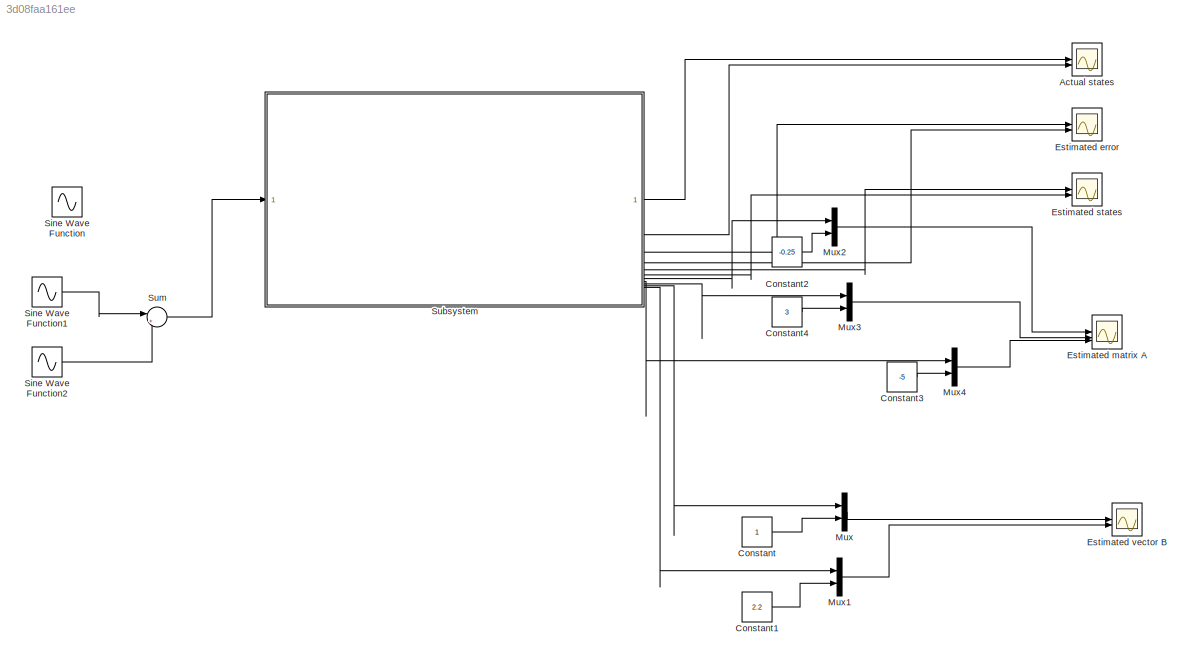
MODEL slx_3d08faa161ee
KIND model
CONFIG AbsTol = auto
CONFIG EnableMultiTasking = off
CONFIG FixedStep = auto
CONFIG MaxStep = auto
CONFIG MinStep = auto
CONFIG RelTol = 1e-3
CONFIG SampleTimeConstraint = Unconstrained
CONFIG SolverName = VariableStepAuto
CONFIG StartTime = 0.0
CONFIG StopTime = 100.0
BLOCK [Scope] Actual states
  Floating = off
  NumInputPorts = 2
  ScopeSpecificationString = Simulink.scopes.TimeScopeBlockCfg('CurrentConfiguration', extmgr.ConfigurationSet(extmgr.Configuration('Core','General UI',true,'FigureColor',[0 0 0]),extmgr.Configuration('Core','Source UI',true),extmgr.Configuration('Sources','WiredSimulink',true),extmgr.Configuration('Visuals','Time Domain',true,'SerializedDisplays',{struct('MinYLimReal','-43.25924','MaxYLimReal','42.99645','YLabelReal','','Min...<+2177ch>
BLOCK [Constant] Constant
BLOCK [Constant] Constant1
  Value = 2.2
BLOCK [Constant] Constant2
  Value = -0.25
BLOCK [Constant] Constant3
  Value = -5
BLOCK [Constant] Constant4
  Value = 3
BLOCK [Scope] Estimated error
  Floating = off
  NumInputPorts = 2
  ScopeSpecificationString = Simulink.scopes.TimeScopeBlockCfg('CurrentConfiguration', extmgr.ConfigurationSet(extmgr.Configuration('Core','General UI',true),extmgr.Configuration('Core','Source UI',true),extmgr.Configuration('Sources','WiredSimulink',true,'DataLoggingVariableName','ScopeData3'),extmgr.Configuration('Visuals','Time Domain',true,'SerializedDisplays',{struct('MinYLimReal','-1.77203','MaxYLimReal','1.6765','YLabe...<+2262ch>
BLOCK [Scope] Estimated matrix A
  Floating = off
  NumInputPorts = 3
  ScopeSpecificationString = Simulink.scopes.TimeScopeBlockCfg('CurrentConfiguration', extmgr.ConfigurationSet(extmgr.Configuration('Core','General UI',true),extmgr.Configuration('Core','Source UI',true),extmgr.Configuration('Sources','WiredSimulink',true,'DataLoggingVariableName','ScopeData6'),extmgr.Configuration('Visuals','Time Domain',true,'SerializedDisplays',{struct('MinYLimReal','-3.00702','MaxYLimReal','1.76682','YLab...<+3279ch>
BLOCK [Scope] Estimated states
  Floating = off
  NumInputPorts = 2
  ScopeSpecificationString = Simulink.scopes.TimeScopeBlockCfg('CurrentConfiguration', extmgr.ConfigurationSet(extmgr.Configuration('Core','General UI',true),extmgr.Configuration('Core','Source UI',true),extmgr.Configuration('Sources','WiredSimulink',true,'DataLoggingVariableName','ScopeData5'),extmgr.Configuration('Visuals','Time Domain',true,'SerializedDisplays',{struct('MinYLimReal','-43.12696','MaxYLimReal','43.08718','YL...<+2233ch>
BLOCK [Scope] Estimated vector B
  Floating = off
  NumInputPorts = 2
  ScopeSpecificationString = Simulink.scopes.TimeScopeBlockCfg('CurrentConfiguration', extmgr.ConfigurationSet(extmgr.Configuration('Core','General UI',true),extmgr.Configuration('Core','Source UI',true),extmgr.Configuration('Sources','WiredSimulink',true,'DataLoggingVariableName','ScopeData7'),extmgr.Configuration('Visuals','Time Domain',true,'SerializedDisplays',{struct('MinYLimReal','-1.11238','MaxYLimReal','3.04213','YLab...<+2392ch>
BLOCK [Mux] Mux
  DisplayOption = bar
  Inputs = 2
BLOCK [Mux] Mux1
  DisplayOption = bar
  Inputs = 2
BLOCK [Mux] Mux2
  DisplayOption = bar
  Inputs = 2
BLOCK [Mux] Mux3
  DisplayOption = bar
  Inputs = 2
BLOCK [Mux] Mux4
  DisplayOption = bar
  Inputs = 2
BLOCK [Sin] Sine Wave Function
  Amplitude = 10
  Frequency = 2
  SampleTime = 0
BLOCK [Sin] Sine Wave Function1
  Amplitude = 10
  Frequency = 2
  SampleTime = 0
BLOCK [Sin] Sine Wave Function2
  Amplitude = 7
  Frequency = 3.6
  Phase = pi/2
  SampleTime = 0
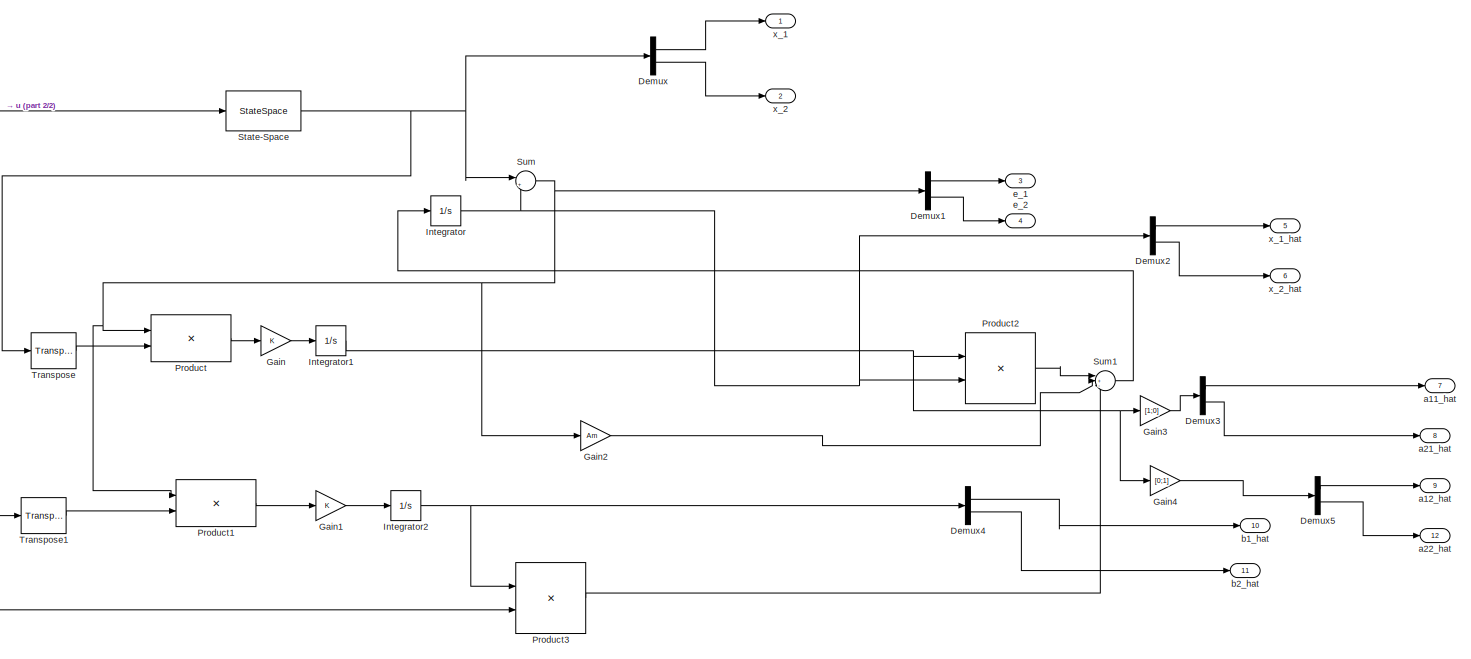
[diagram: Subsystem - part 1/2, most of the canvas]
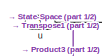
[diagram: Subsystem - part 2/2, top left region]
BLOCK [SubSystem] Subsystem
BLOCK [Demux] Subsystem/Demux
  Outputs = 2
BLOCK [Demux] Subsystem/Demux1
  Outputs = 2
BLOCK [Demux] Subsystem/Demux2
  Outputs = 2
BLOCK [Demux] Subsystem/Demux3
  Outputs = 2
BLOCK [Demux] Subsystem/Demux4
  Outputs = 2
BLOCK [Demux] Subsystem/Demux5
  Outputs = 2
BLOCK [Gain] Subsystem/Gain
BLOCK [Gain] Subsystem/Gain1
BLOCK [Gain] Subsystem/Gain2
  Gain = Am
  Multiplication = Matrix(K*u)
BLOCK [Gain] Subsystem/Gain3
  Gain = [1;0]
  Multiplication = Matrix(u*K)
BLOCK [Gain] Subsystem/Gain4
  Gain = [0;1]
  Multiplication = Matrix(u*K)
BLOCK [Integrator] Subsystem/Integrator
BLOCK [Integrator] Subsystem/Integrator1
BLOCK [Integrator] Subsystem/Integrator2
BLOCK [Product] Subsystem/Product
  Multiplication = Matrix(*)
BLOCK [Product] Subsystem/Product1
  Multiplication = Matrix(*)
BLOCK [Product] Subsystem/Product2
  Multiplication = Matrix(*)
BLOCK [Product] Subsystem/Product3
  Multiplication = Matrix(*)
BLOCK [StateSpace] Subsystem/State-Space
  A = A
  B = B
  C = [1 0;0 1]
  D = [0;0]
  InitialCondition = [0,0]
BLOCK [Sum] Subsystem/Sum
  Inputs = |+-
BLOCK [Sum] Subsystem/Sum1
  Inputs = |+-+
BLOCK [Reference] Subsystem/Transpose  REF=matrix_library/Transpose
  LibrarySourceBlock = simulink/Matrix\nOperations/Transpose
  SourceBlock = matrix_library/Transpose
  SourceType = Transpose
BLOCK [Reference] Subsystem/Transpose1  REF=matrix_library/Transpose
  LibrarySourceBlock = simulink/Matrix\nOperations/Transpose
  SourceBlock = matrix_library/Transpose
  SourceType = Transpose
BLOCK [Outport] Subsystem/a11_hat
  Port = 7
BLOCK [Outport] Subsystem/a12_hat
  Port = 9
BLOCK [Outport] Subsystem/a21_hat
  Port = 8
BLOCK [Outport] Subsystem/a22_hat
  Port = 12
BLOCK [Outport] Subsystem/b1_hat
  Port = 10
BLOCK [Outport] Subsystem/b2_hat
  Port = 11
BLOCK [Outport] Subsystem/e_1
  Port = 3
BLOCK [Outport] Subsystem/e_2
  Port = 4
BLOCK [Inport] Subsystem/u
BLOCK [Outport] Subsystem/x_1
BLOCK [Outport] Subsystem/x_1_hat
  Port = 5
BLOCK [Outport] Subsystem/x_2
  Port = 2
BLOCK [Outport] Subsystem/x_2_hat
  Port = 6
BLOCK [Sum] Sum
  Inputs = |++
LINE Constant1:1 -> Mux1:2
LINE Constant2:1 -> Mux2:2
LINE Constant3:1 -> Mux4:2
LINE Constant4:1 -> Mux3:2
LINE Constant:1 -> Mux:2
LINE Mux1:1 -> Estimated vector B:2
LINE Mux2:1 -> Estimated matrix A:1
LINE Mux3:1 -> Estimated matrix A:2
LINE Mux4:1 -> Estimated matrix A:3
LINE Mux:1 -> Estimated vector B:1
LINE Sine Wave Function1:1 -> Sum:1
LINE Sine Wave Function2:1 -> Sum:2
LINE Subsystem/Demux1:1 -> Subsystem/e_1:1
LINE Subsystem/Demux1:2 -> Subsystem/e_2:1
LINE Subsystem/Demux2:1 -> Subsystem/x_1_hat:1
LINE Subsystem/Demux2:2 -> Subsystem/x_2_hat:1
LINE Subsystem/Demux3:1 -> Subsystem/a11_hat:1
LINE Subsystem/Demux3:2 -> Subsystem/a21_hat:1
LINE Subsystem/Demux4:1 -> Subsystem/b1_hat:1
LINE Subsystem/Demux4:2 -> Subsystem/b2_hat:1
LINE Subsystem/Demux5:1 -> Subsystem/a12_hat:1
LINE Subsystem/Demux5:2 -> Subsystem/a22_hat:1
LINE Subsystem/Demux:1 -> Subsystem/x_1:1
LINE Subsystem/Demux:2 -> Subsystem/x_2:1
LINE Subsystem/Gain1:1 -> Subsystem/Integrator2:1
LINE Subsystem/Gain2:1 -> Subsystem/Sum1:2
LINE Subsystem/Gain3:1 -> Subsystem/Demux3:1
LINE Subsystem/Gain4:1 -> Subsystem/Demux5:1
LINE Subsystem/Gain:1 -> Subsystem/Integrator1:1
NET Subsystem/Integrator1:1 -> Subsystem/Gain3:1, Subsystem/Gain4:1, Subsystem/Product2:1
NET Subsystem/Integrator2:1 -> Subsystem/Demux4:1, Subsystem/Product3:1
NET Subsystem/Integrator:1 -> Subsystem/Demux2:1, Subsystem/Product2:2, Subsystem/Sum:2
LINE Subsystem/Product1:1 -> Subsystem/Gain1:1
LINE Subsystem/Product2:1 -> Subsystem/Sum1:1
LINE Subsystem/Product3:1 -> Subsystem/Sum1:3
LINE Subsystem/Product:1 -> Subsystem/Gain:1
NET Subsystem/State-Space:1 -> Subsystem/Demux:1, Subsystem/Sum:1, Subsystem/Transpose:1
LINE Subsystem/Sum1:1 -> Subsystem/Integrator:1
NET Subsystem/Sum:1 -> Subsystem/Demux1:1, Subsystem/Gain2:1, Subsystem/Product1:1, Subsystem/Product:1
LINE Subsystem/Transpose1:1 -> Subsystem/Product1:2
LINE Subsystem/Transpose:1 -> Subsystem/Product:2
NET Subsystem/u:1 -> Subsystem/Product3:2, Subsystem/State-Space:1, Subsystem/Transpose1:1
LINE Subsystem:1 -> Actual states:1
LINE Subsystem:10 -> Mux:1
LINE Subsystem:11 -> Mux1:1
LINE Subsystem:2 -> Actual states:2
LINE Subsystem:3 -> Estimated error:1
LINE Subsystem:4 -> Estimated error:2
LINE Subsystem:5 -> Estimated states:1
LINE Subsystem:6 -> Estimated states:2
LINE Subsystem:7 -> Mux2:1
LINE Subsystem:8 -> Mux4:1
LINE Subsystem:9 -> Mux3:1
LINE Sum:1 -> Subsystem:1
note: NET lines group one-source signal fan-out (src -> all destinations, sorted); 1:1 wires keep LINE
